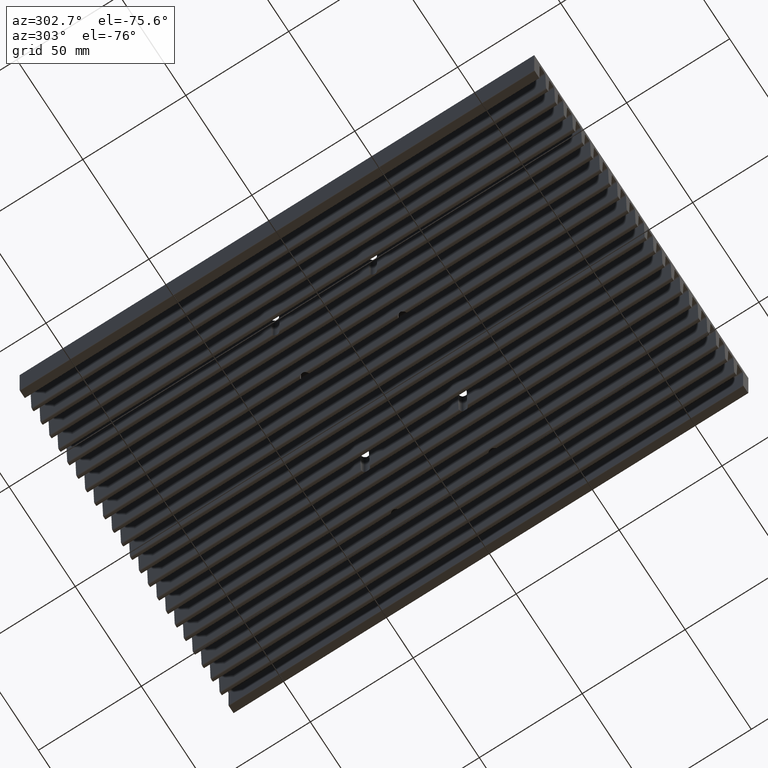
[diagram: clean part render]
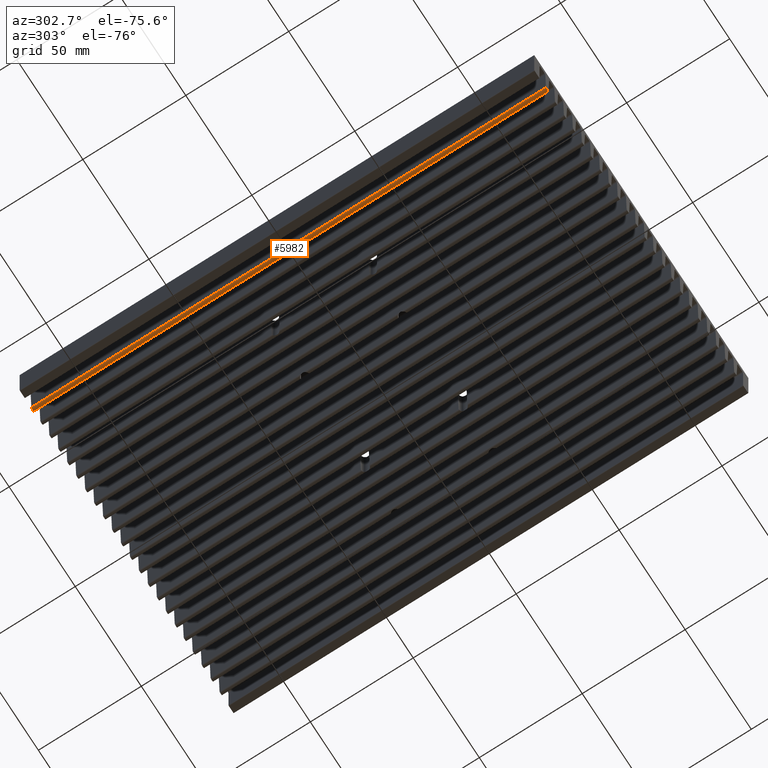
[diagram: same view with one face highlighted and labeled with its STEP entity id]
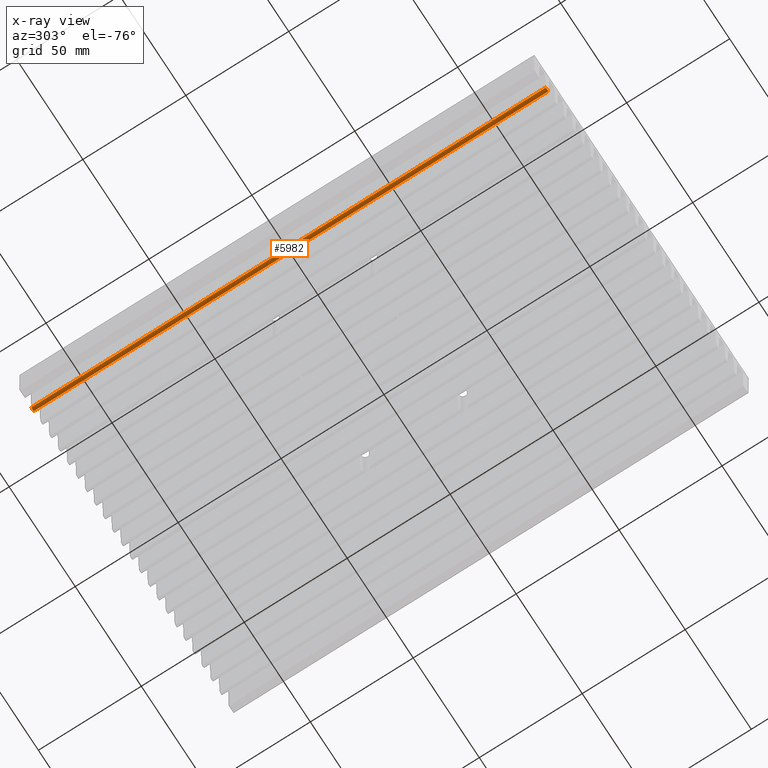
[diagram: x-ray of the same camera — body ghosted, the highlighted face saturated]
A machine part, auxiliary view. The second image highlights one B-rep face of the part: STEP entity #5982.
The next image is the same camera in x-ray: the body ghosted, the highlighted face saturated — about 0% of this face is hidden behind the body in this view.
In plain terms, the highlighted cylindrical surface (edge-blend (fillet) strip) has radius 0.95 mm, axis along (0, -1, -0).
Its self-contained STEP definition (entity closure, byte-faithful):
#5924=CARTESIAN_POINT('',(-70.240286293048797,-125.0,-24.073321124083179));
#5925=VERTEX_POINT('',#5924);
#5932=CARTESIAN_POINT('',(-70.240286293048797,125.0,-24.073321124083122));
#5933=VERTEX_POINT('',#5932);
#5934=CARTESIAN_POINT('',(-70.240286293048797,125.0,-24.073321124083122));
#5935=DIRECTION('',(0.0,-1.0,0.0));
#5936=VECTOR('',#5935,250.0);
#5937=LINE('',#5934,#5936);
#5938=EDGE_CURVE('',#5933,#5925,#5937,.T.);
#5950=CARTESIAN_POINT('',(-71.19000000000014,125.0,-24.05000000000058));
#5951=DIRECTION('',(0.0,-1.0,-2.202682E-016));
#5952=DIRECTION('',(0.0,0.0,-1.0));
#5953=AXIS2_PLACEMENT_3D('',#5950,#5951,#5952);
#5954=CYLINDRICAL_SURFACE('',#5953,0.94999999999986);
#5955=CARTESIAN_POINT('',(-72.139713706951468,-125.0,-24.073321124083179));
#5956=VERTEX_POINT('',#5955);
#5957=CARTESIAN_POINT('',(-71.19000000000014,-125.0,-24.050000000000637));
#5958=DIRECTION('',(0.0,1.0,0.0));
#5959=DIRECTION('',(0.0,0.0,-1.0));
#5960=AXIS2_PLACEMENT_3D('',#5957,#5958,#5959);
#5961=CIRCLE('',#5960,0.94999999999986);
#5962=EDGE_CURVE('',#5925,#5956,#5961,.T.);
#5963=ORIENTED_EDGE('',*,*,#5962,.T.);
#5964=CARTESIAN_POINT('',(-72.139713706951468,125.0,-24.073321124083122));
#5965=VERTEX_POINT('',#5964);
#5966=CARTESIAN_POINT('',(-72.139713706951468,125.0,-24.073321124083122));
#5967=DIRECTION('',(0.0,-1.0,0.0));
#5968=VECTOR('',#5967,250.0);
#5969=LINE('',#5966,#5968);
#5970=EDGE_CURVE('',#5965,#5956,#5969,.T.);
#5971=ORIENTED_EDGE('',*,*,#5970,.F.);
#5972=CARTESIAN_POINT('',(-71.19000000000014,125.0,-24.05000000000058));
#5973=DIRECTION('',(0.0,1.0,0.0));
#5974=DIRECTION('',(0.0,0.0,-1.0));
#5975=AXIS2_PLACEMENT_3D('',#5972,#5973,#5974);
#5976=CIRCLE('',#5975,0.94999999999986);
#5977=EDGE_CURVE('',#5933,#5965,#5976,.T.);
#5978=ORIENTED_EDGE('',*,*,#5977,.F.);
#5979=ORIENTED_EDGE('',*,*,#5938,.T.);
#5980=EDGE_LOOP('',(#5963,#5971,#5978,#5979));
#5981=FACE_OUTER_BOUND('',#5980,.T.);
#5982=ADVANCED_FACE('',(#5981),#5954,.T.);